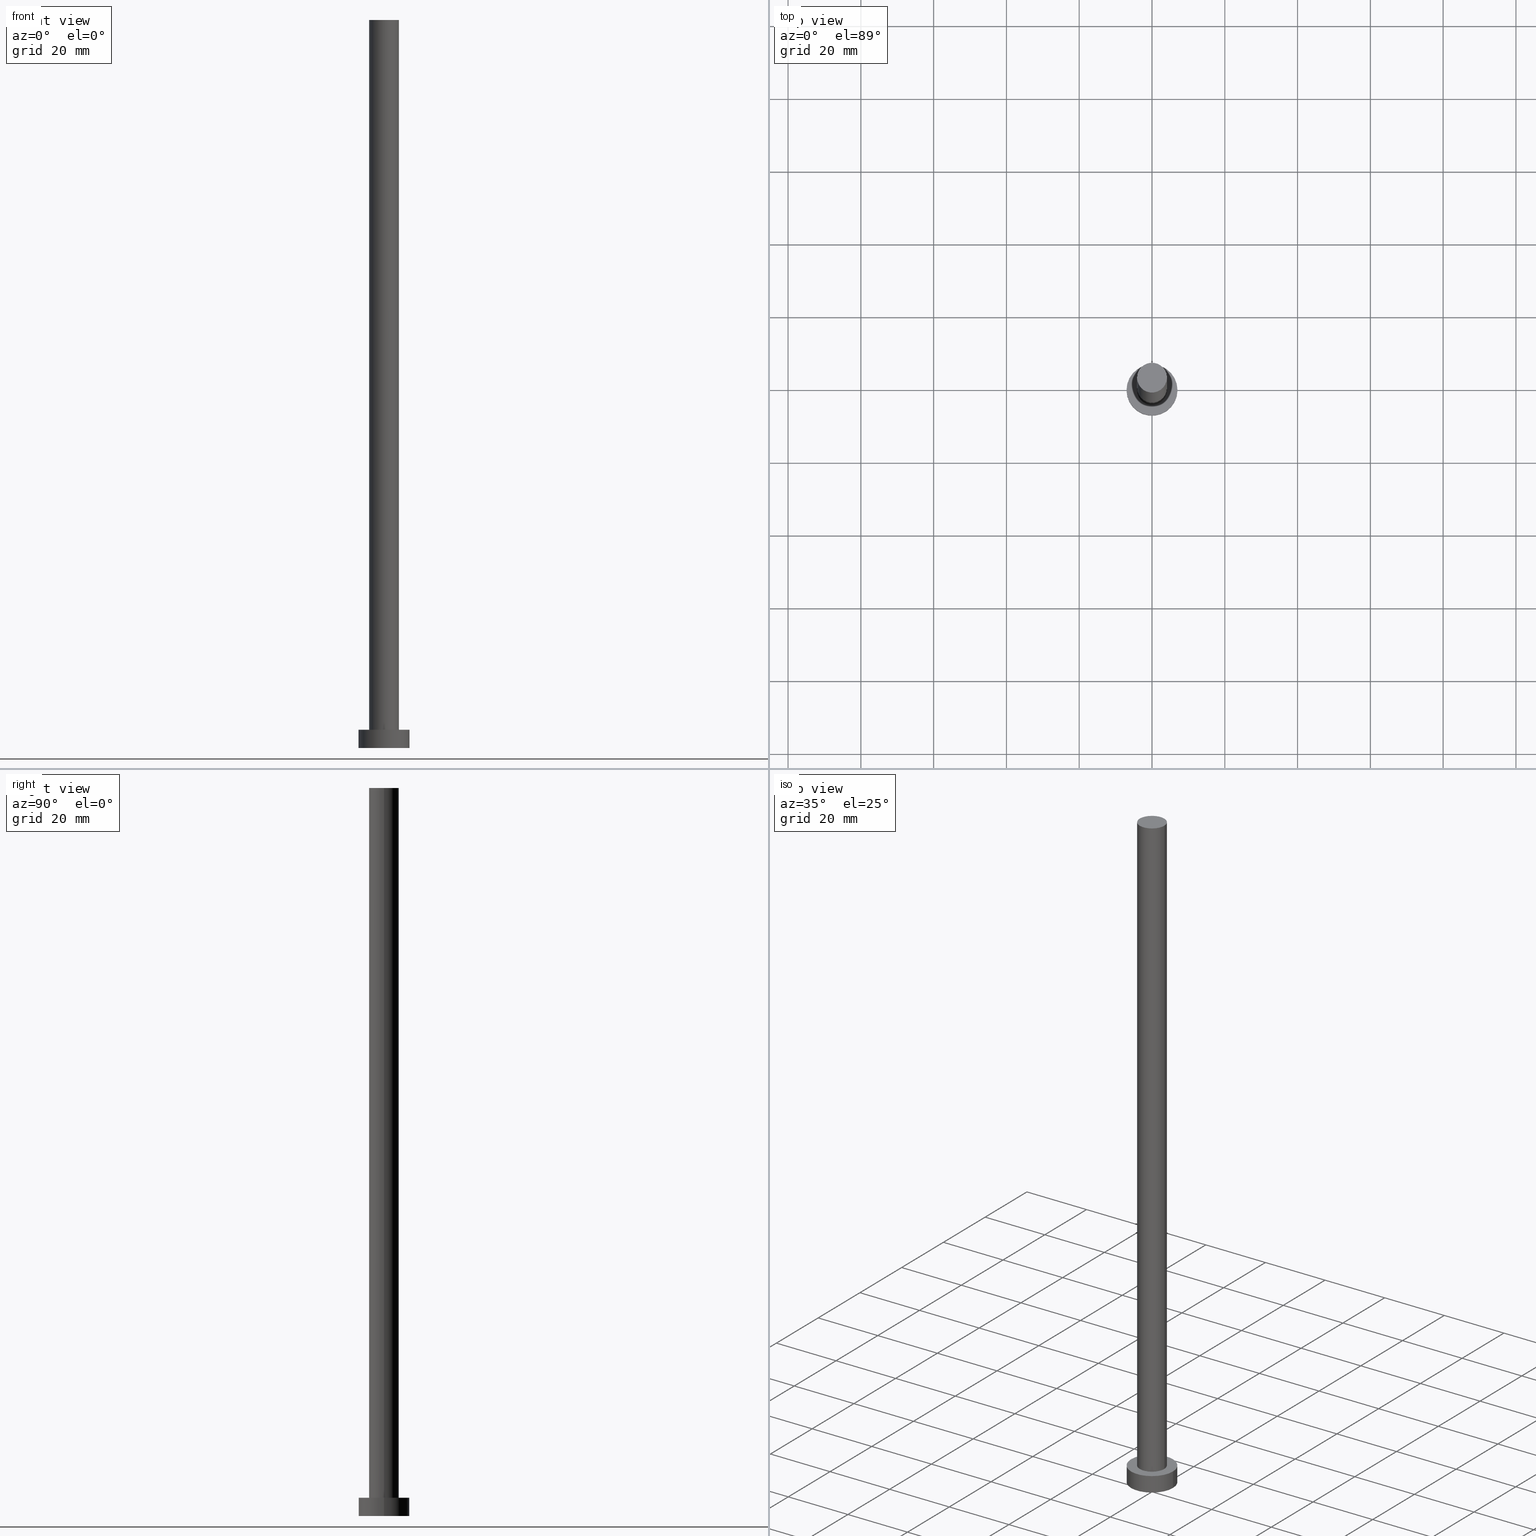
[diagram: canonical four-view strip — front | top / right | iso, engineering-drawing reading convention]
A machine part, canonical four-view strip (front | top / right | iso — engineering-drawing reading convention). The complete STEP part file that produces these views, byte-faithful:
ISO-10303-21;
HEADER;
FILE_DESCRIPTION (( 'STEP AP203' ),
    '1' );
FILE_NAME ('b5e3.STEP',
    '2023-02-13T10:52:40',
    ( '' ),
    ( '' ),
    'SwSTEP 2.0',
    'SolidWorks 2019',
    '' );
FILE_SCHEMA (( 'CONFIG_CONTROL_DESIGN' ));
ENDSEC;

DATA;
#1 = ORIENTED_EDGE ( 'NONE', *, *, #16, .F. ) ;
#2 = COORDINATED_UNIVERSAL_TIME_OFFSET ( 1, 0, .AHEAD. ) ;
#3 = DIRECTION ( 'NONE',  ( 0.000000000000000000, 0.000000000000000000, 1.000000000000000000 ) ) ;
#4 = DIRECTION ( 'NONE',  ( 0.000000000000000000, 0.000000000000000000, 1.000000000000000000 ) ) ;
#5 = DIRECTION ( 'NONE',  ( -1.000000000000000000, 0.000000000000000000, 0.000000000000000000 ) ) ;
#6 = APPROVAL ( #57, 'NEUR�EN�' ) ;
#7 = DIRECTION ( 'NONE',  ( -0.000000000000000000, -0.000000000000000000, -1.000000000000000000 ) ) ;
#8 = LINE ( 'NONE', #55, #58 ) ;
#9 = CARTESIAN_POINT ( 'NONE',  ( 7.000000000000000000, 8.572527594031473190E-16, 5.000000000000000000 ) ) ;
#10 = CIRCLE ( 'NONE', #29, 4.099999999999999645 ) ;
#11 = CC_DESIGN_PERSON_AND_ORGANIZATION_ASSIGNMENT ( #161, #49, ( #163 ) ) ;
#12 = APPROVAL ( #165, 'NEUR�EN�' ) ;
#13 = APPROVAL_STATUS ( 'not_yet_approved' ) ;
#14 = EDGE_CURVE ( 'NONE', #32, #193, #102, .T. ) ;
#15 = ORIENTED_EDGE ( 'NONE', *, *, #171, .T. ) ;
#16 = EDGE_CURVE ( 'NONE', #77, #250, #10, .T. ) ;
#17 = CYLINDRICAL_SURFACE ( 'NONE', #172, 4.099999999999999645 ) ;
#18 = APPLICATION_PROTOCOL_DEFINITION ( 'international standard', 'config_control_design', 1994, #233 ) ;
#19 = DIRECTION ( 'NONE',  ( 1.000000000000000000, 0.000000000000000000, 0.000000000000000000 ) ) ;
#20 = PERSON_AND_ORGANIZATION ( #178, #36 ) ;
#21 = DIRECTION ( 'NONE',  ( 0.000000000000000000, 0.000000000000000000, 1.000000000000000000 ) ) ;
#22 = DIRECTION ( 'NONE',  ( 1.000000000000000000, 0.000000000000000000, 0.000000000000000000 ) ) ;
#23 = DIRECTION ( 'NONE',  ( 1.000000000000000000, 0.000000000000000000, -0.000000000000000000 ) ) ;
#24 = DIRECTION ( 'NONE',  ( 1.000000000000000000, 0.000000000000000000, -0.000000000000000000 ) ) ;
#25 = APPROVAL_PERSON_ORGANIZATION ( #114, #6, #91 ) ;
#26 = CARTESIAN_POINT ( 'NONE',  ( 0.000000000000000000, 0.000000000000000000, 200.0000000000000000 ) ) ;
#27 = ORIENTED_EDGE ( 'NONE', *, *, #14, .F. ) ;
#28 =( LENGTH_UNIT ( ) NAMED_UNIT ( * ) SI_UNIT ( .MILLI., .METRE. ) );
#29 = AXIS2_PLACEMENT_3D ( 'NONE', #232, #240, #116 ) ;
#30 = ADVANCED_BREP_SHAPE_REPRESENTATION ( 'b5e3', ( #139, #255 ), #229 ) ;
#31 = PERSON_AND_ORGANIZATION ( #178, #36 ) ;
#32 = VERTEX_POINT ( 'NONE', #54 ) ;
#33 = PRODUCT_DEFINITION_FORMATION_WITH_SPECIFIED_SOURCE ( 'LIBOVOLN�', '', #173, .NOT_KNOWN. ) ;
#34 = ORIENTED_EDGE ( 'NONE', *, *, #78, .T. ) ;
#35 = EDGE_CURVE ( 'NONE', #170, #93, #204, .T. ) ;
#36 = ORGANIZATION ( 'NEUR�EN�', 'NEUR�EN�', '' ) ;
#37 = EDGE_CURVE ( 'NONE', #170, #211, #111, .T. ) ;
#38 = PERSON_AND_ORGANIZATION_ROLE ( 'design_owner' ) ;
#39 = CARTESIAN_POINT ( 'NONE',  ( 0.000000000000000000, 0.000000000000000000, 5.000000000000000000 ) ) ;
#40 = CC_DESIGN_DATE_AND_TIME_ASSIGNMENT ( #124, #224, ( #163 ) ) ;
#41 = LOCAL_TIME ( 11, 52, 40.00000000000000000, #67 ) ;
#42 = DATE_AND_TIME ( #72, #213 ) ;
#43 = CARTESIAN_POINT ( 'NONE',  ( 0.000000000000000000, 0.000000000000000000, 0.000000000000000000 ) ) ;
#44 = EDGE_LOOP ( 'NONE', ( #1, #251, #80, #127 ) ) ;
#45 = APPROVAL_DATE_TIME ( #151, #190 ) ;
#46 = DIRECTION ( 'NONE',  ( -1.000000000000000000, 0.000000000000000000, 0.000000000000000000 ) ) ;
#47 = AXIS2_PLACEMENT_3D ( 'NONE', #43, #236, #216 ) ;
#48 = DIRECTION ( 'NONE',  ( 1.000000000000000000, 0.000000000000000000, 0.000000000000000000 ) ) ;
#49 = PERSON_AND_ORGANIZATION_ROLE ( 'creator' ) ;
#50 = APPROVAL_DATE_TIME ( #223, #12 ) ;
#51 = DATE_TIME_ROLE ( 'classification_date' ) ;
#52 = ORIENTED_EDGE ( 'NONE', *, *, #150, .F. ) ;
#53 = APPLICATION_PROTOCOL_DEFINITION ( 'international standard', 'config_control_design', 1994, #244 ) ;
#54 = CARTESIAN_POINT ( 'NONE',  ( 4.099999999999999645, 5.021051876504147385E-16, 5.000000000000000000 ) ) ;
#55 = CARTESIAN_POINT ( 'NONE',  ( 7.000000000000000000, 8.572527594031473190E-16, 5.000000000000000000 ) ) ;
#56 = AXIS2_PLACEMENT_3D ( 'NONE', #98, #155, #22 ) ;
#57 = APPROVAL_STATUS ( 'not_yet_approved' ) ;
#58 = VECTOR ( 'NONE', #135, 1000.000000000000000 ) ;
#59 = PLANE ( 'NONE',  #205 ) ;
#60 = CARTESIAN_POINT ( 'NONE',  ( 0.000000000000000000, 0.000000000000000000, 5.000000000000000000 ) ) ;
#61 = FACE_OUTER_BOUND ( 'NONE', #253, .T. ) ;
#62 = CYLINDRICAL_SURFACE ( 'NONE', #130, 7.000000000000000000 ) ;
#63 = ORIENTED_EDGE ( 'NONE', *, *, #35, .T. ) ;
#64 = CALENDAR_DATE ( 2023, 13, 2 ) ;
#65 = PRODUCT_RELATED_PRODUCT_CATEGORY ( 'detail', '', ( #173 ) ) ;
#66 = PERSON_AND_ORGANIZATION_ROLE ( 'creator' ) ;
#67 = COORDINATED_UNIVERSAL_TIME_OFFSET ( 1, 0, .AHEAD. ) ;
#68 = SECURITY_CLASSIFICATION_LEVEL ( 'unclassified' ) ;
#69 = CC_DESIGN_SECURITY_CLASSIFICATION ( #113, ( #33 ) ) ;
#70 = CIRCLE ( 'NONE', #47, 7.000000000000000000 ) ;
#71 = CARTESIAN_POINT ( 'NONE',  ( 0.000000000000000000, 0.000000000000000000, 0.000000000000000000 ) ) ;
#72 = CALENDAR_DATE ( 2023, 13, 2 ) ;
#73 = CARTESIAN_POINT ( 'NONE',  ( -7.000000000000000000, 0.000000000000000000, 5.000000000000000000 ) ) ;
#74 = EDGE_CURVE ( 'NONE', #211, #209, #166, .T. ) ;
#75 = DIRECTION ( 'NONE',  ( -1.000000000000000000, 0.000000000000000000, 0.000000000000000000 ) ) ;
#76 = LINE ( 'NONE', #159, #104 ) ;
#77 = VERTEX_POINT ( 'NONE', #183 ) ;
#78 = EDGE_CURVE ( 'NONE', #93, #170, #241, .T. ) ;
#79 = CARTESIAN_POINT ( 'NONE',  ( -7.000000000000000000, 0.000000000000000000, 0.000000000000000000 ) ) ;
#80 = ORIENTED_EDGE ( 'NONE', *, *, #14, .T. ) ;
#81 = ORIENTED_EDGE ( 'NONE', *, *, #16, .T. ) ;
#82 = AXIS2_PLACEMENT_3D ( 'NONE', #26, #198, #23 ) ;
#83 = CALENDAR_DATE ( 2023, 13, 2 ) ;
#84 = ADVANCED_FACE ( 'NONE', ( #235 ), #94, .T. ) ;
#85 = EDGE_CURVE ( 'NONE', #209, #211, #70, .T. ) ;
#86 = ORIENTED_EDGE ( 'NONE', *, *, #74, .T. ) ;
#87 = ORIENTED_EDGE ( 'NONE', *, *, #37, .F. ) ;
#88 = PERSON_AND_ORGANIZATION_ROLE ( 'classification_officer' ) ;
#89 = VECTOR ( 'NONE', #131, 1000.000000000000000 ) ;
#90 = LINE ( 'NONE', #199, #237 ) ;
#91 = APPROVAL_ROLE ( '' ) ;
#92 = FACE_OUTER_BOUND ( 'NONE', #202, .T. ) ;
#93 = VERTEX_POINT ( 'NONE', #9 ) ;
#94 = CYLINDRICAL_SURFACE ( 'NONE', #187, 4.099999999999999645 ) ;
#95 = DIRECTION ( 'NONE',  ( 1.000000000000000000, 0.000000000000000000, 0.000000000000000000 ) ) ;
#96 = AXIS2_PLACEMENT_3D ( 'NONE', #120, #180, #175 ) ;
#97 = CARTESIAN_POINT ( 'NONE',  ( -4.099999999999999645, 0.000000000000000000, 200.0000000000000000 ) ) ;
#98 = CARTESIAN_POINT ( 'NONE',  ( 0.000000000000000000, 0.000000000000000000, 5.000000000000000000 ) ) ;
#99 = CARTESIAN_POINT ( 'NONE',  ( 0.000000000000000000, 0.000000000000000000, 5.000000000000000000 ) ) ;
#100 = ORIENTED_EDGE ( 'NONE', *, *, #85, .T. ) ;
#101 = PERSON_AND_ORGANIZATION ( #178, #36 ) ;
#102 = CIRCLE ( 'NONE', #133, 4.099999999999999645 ) ;
#103 = CIRCLE ( 'NONE', #164, 4.099999999999999645 ) ;
#104 = VECTOR ( 'NONE', #239, 1000.000000000000000 ) ;
#105 = CC_DESIGN_PERSON_AND_ORGANIZATION_ASSIGNMENT ( #206, #88, ( #113 ) ) ;
#106 = CIRCLE ( 'NONE', #148, 4.099999999999999645 ) ;
#107 = CARTESIAN_POINT ( 'NONE',  ( 0.000000000000000000, 0.000000000000000000, 0.000000000000000000 ) ) ;
#108 = FACE_OUTER_BOUND ( 'NONE', #188, .T. ) ;
#109 = CLOSED_SHELL ( 'NONE', ( #84, #215, #177, #212, #249, #222, #145 ) ) ;
#110 = FACE_OUTER_BOUND ( 'NONE', #117, .T. ) ;
#111 = LINE ( 'NONE', #122, #89 ) ;
#112 = CALENDAR_DATE ( 2023, 13, 2 ) ;
#113 = SECURITY_CLASSIFICATION ( '', '', #68 ) ;
#114 = PERSON_AND_ORGANIZATION ( #178, #36 ) ;
#115 = FACE_BOUND ( 'NONE', #125, .T. ) ;
#116 = DIRECTION ( 'NONE',  ( 1.000000000000000000, 0.000000000000000000, 0.000000000000000000 ) ) ;
#117 = EDGE_LOOP ( 'NONE', ( #168, #52, #226, #254 ) ) ;
#118 = APPROVAL_DATE_TIME ( #42, #6 ) ;
#119 = PLANE ( 'NONE',  #82 ) ;
#120 = CARTESIAN_POINT ( 'NONE',  ( 0.000000000000000000, 0.000000000000000000, 5.000000000000000000 ) ) ;
#121 = CARTESIAN_POINT ( 'NONE',  ( -4.099999999999999645, 0.000000000000000000, 5.000000000000000000 ) ) ;
#122 = CARTESIAN_POINT ( 'NONE',  ( -7.000000000000000000, 0.000000000000000000, 5.000000000000000000 ) ) ;
#123 = ORIENTED_EDGE ( 'NONE', *, *, #74, .F. ) ;
#124 = DATE_AND_TIME ( #83, #41 ) ;
#125 = EDGE_LOOP ( 'NONE', ( #129, #27 ) ) ;
#126 = AXIS2_PLACEMENT_3D ( 'NONE', #158, #162, #19 ) ;
#127 = ORIENTED_EDGE ( 'NONE', *, *, #174, .F. ) ;
#128 = CC_DESIGN_PERSON_AND_ORGANIZATION_ASSIGNMENT ( #20, #38, ( #173 ) ) ;
#129 = ORIENTED_EDGE ( 'NONE', *, *, #136, .F. ) ;
#130 = AXIS2_PLACEMENT_3D ( 'NONE', #142, #220, #46 ) ;
#131 = DIRECTION ( 'NONE',  ( -0.000000000000000000, -0.000000000000000000, -1.000000000000000000 ) ) ;
#132 = SHAPE_DEFINITION_REPRESENTATION ( #245, #30 ) ;
#133 = AXIS2_PLACEMENT_3D ( 'NONE', #99, #201, #219 ) ;
#134 = PLANE ( 'NONE',  #217 ) ;
#135 = DIRECTION ( 'NONE',  ( -0.000000000000000000, -0.000000000000000000, -1.000000000000000000 ) ) ;
#136 = EDGE_CURVE ( 'NONE', #193, #32, #103, .T. ) ;
#137 = DIRECTION ( 'NONE',  ( 1.000000000000000000, 0.000000000000000000, -0.000000000000000000 ) ) ;
#138 = DESIGN_CONTEXT ( 'detailed design', #233, 'design' ) ;
#139 = MANIFOLD_SOLID_BREP ( 'P�idat vysunut�m3', #109 ) ;
#140 = DIRECTION ( 'NONE',  ( 0.000000000000000000, 0.000000000000000000, 1.000000000000000000 ) ) ;
#141 = CYLINDRICAL_SURFACE ( 'NONE', #96, 7.000000000000000000 ) ;
#142 = CARTESIAN_POINT ( 'NONE',  ( 0.000000000000000000, 0.000000000000000000, 5.000000000000000000 ) ) ;
#143 = COORDINATED_UNIVERSAL_TIME_OFFSET ( 1, 0, .AHEAD. ) ;
#144 = FACE_OUTER_BOUND ( 'NONE', #252, .T. ) ;
#145 = ADVANCED_FACE ( 'NONE', ( #92 ), #119, .T. ) ;
#146 = CALENDAR_DATE ( 2023, 13, 2 ) ;
#147 = APPROVAL_ROLE ( '' ) ;
#148 = AXIS2_PLACEMENT_3D ( 'NONE', #176, #3, #95 ) ;
#149 = PERSON_AND_ORGANIZATION ( #178, #36 ) ;
#150 = EDGE_CURVE ( 'NONE', #250, #77, #106, .T. ) ;
#151 = DATE_AND_TIME ( #112, #242 ) ;
#152 =( NAMED_UNIT ( * ) SI_UNIT ( $, .STERADIAN. ) SOLID_ANGLE_UNIT ( ) );
#153 = EDGE_LOOP ( 'NONE', ( #123, #186 ) ) ;
#154 = DIRECTION ( 'NONE',  ( -0.000000000000000000, -0.000000000000000000, -1.000000000000000000 ) ) ;
#155 = DIRECTION ( 'NONE',  ( 0.000000000000000000, 0.000000000000000000, 1.000000000000000000 ) ) ;
#156 = CC_DESIGN_PERSON_AND_ORGANIZATION_ASSIGNMENT ( #149, #247, ( #33 ) ) ;
#157 = DIRECTION ( 'NONE',  ( 1.000000000000000000, 0.000000000000000000, 0.000000000000000000 ) ) ;
#158 = CARTESIAN_POINT ( 'NONE',  ( 0.000000000000000000, 0.000000000000000000, 5.000000000000000000 ) ) ;
#159 = CARTESIAN_POINT ( 'NONE',  ( -4.099999999999999645, 0.000000000000000000, 200.0000000000000000 ) ) ;
#160 = ORIENTED_EDGE ( 'NONE', *, *, #37, .T. ) ;
#161 = PERSON_AND_ORGANIZATION ( #178, #36 ) ;
#162 = DIRECTION ( 'NONE',  ( 0.000000000000000000, 0.000000000000000000, 1.000000000000000000 ) ) ;
#163 = PRODUCT_DEFINITION ( 'NEZN�M�', '', #33, #138 ) ;
#164 = AXIS2_PLACEMENT_3D ( 'NONE', #60, #140, #214 ) ;
#165 = APPROVAL_STATUS ( 'not_yet_approved' ) ;
#166 = CIRCLE ( 'NONE', #228, 7.000000000000000000 ) ;
#167 = CC_DESIGN_APPROVAL ( #6, ( #163 ) ) ;
#168 = ORIENTED_EDGE ( 'NONE', *, *, #238, .F. ) ;
#169 = ORIENTED_EDGE ( 'NONE', *, *, #78, .F. ) ;
#170 = VERTEX_POINT ( 'NONE', #73 ) ;
#171 = EDGE_CURVE ( 'NONE', #93, #209, #8, .T. ) ;
#172 = AXIS2_PLACEMENT_3D ( 'NONE', #197, #154, #75 ) ;
#173 = PRODUCT ( 'b5e3', 'b5e3', '', ( #218 ) ) ;
#174 = EDGE_CURVE ( 'NONE', #250, #193, #76, .T. ) ;
#175 = DIRECTION ( 'NONE',  ( -1.000000000000000000, 0.000000000000000000, 0.000000000000000000 ) ) ;
#176 = CARTESIAN_POINT ( 'NONE',  ( 0.000000000000000000, 0.000000000000000000, 200.0000000000000000 ) ) ;
#177 = ADVANCED_FACE ( 'NONE', ( #61 ), #62, .T. ) ;
#178 = PERSON ( 'NEUR�EN�', 'NEUR�EN�', 'NEUR�EN�', ('NEUR�EN�'), ('NEUR�EN�'), ('NEUR�EN�') ) ;
#179 = CARTESIAN_POINT ( 'NONE',  ( 0.000000000000000000, 0.000000000000000000, 200.0000000000000000 ) ) ;
#180 = DIRECTION ( 'NONE',  ( -0.000000000000000000, -0.000000000000000000, -1.000000000000000000 ) ) ;
#181 = DIRECTION ( 'NONE',  ( -0.000000000000000000, -0.000000000000000000, -1.000000000000000000 ) ) ;
#182 = CC_DESIGN_APPROVAL ( #190, ( #113 ) ) ;
#183 = CARTESIAN_POINT ( 'NONE',  ( 4.099999999999999645, 5.021051876504147385E-16, 200.0000000000000000 ) ) ;
#184 =( NAMED_UNIT ( * ) PLANE_ANGLE_UNIT ( ) SI_UNIT ( $, .RADIAN. ) );
#185 = LOCAL_TIME ( 11, 52, 40.00000000000000000, #143 ) ;
#186 = ORIENTED_EDGE ( 'NONE', *, *, #85, .F. ) ;
#187 = AXIS2_PLACEMENT_3D ( 'NONE', #179, #181, #5 ) ;
#188 = EDGE_LOOP ( 'NONE', ( #169, #15, #100, #87 ) ) ;
#189 = COORDINATED_UNIVERSAL_TIME_OFFSET ( 1, 0, .AHEAD. ) ;
#190 = APPROVAL ( #13, 'NEUR�EN�' ) ;
#191 = ORIENTED_EDGE ( 'NONE', *, *, #35, .F. ) ;
#192 = LOCAL_TIME ( 11, 52, 40.00000000000000000, #189 ) ;
#193 = VERTEX_POINT ( 'NONE', #121 ) ;
#194 = CARTESIAN_POINT ( 'NONE',  ( 0.000000000000000000, 0.000000000000000000, 0.000000000000000000 ) ) ;
#195 = ORIENTED_EDGE ( 'NONE', *, *, #171, .F. ) ;
#196 = CC_DESIGN_APPROVAL ( #12, ( #33 ) ) ;
#197 = CARTESIAN_POINT ( 'NONE',  ( 0.000000000000000000, 0.000000000000000000, 200.0000000000000000 ) ) ;
#198 = DIRECTION ( 'NONE',  ( 0.000000000000000000, 0.000000000000000000, 1.000000000000000000 ) ) ;
#199 = CARTESIAN_POINT ( 'NONE',  ( 4.099999999999999645, 5.021051876504147385E-16, 200.0000000000000000 ) ) ;
#200 = CARTESIAN_POINT ( 'NONE',  ( 7.000000000000000000, 8.572527594031473190E-16, 0.000000000000000000 ) ) ;
#201 = DIRECTION ( 'NONE',  ( 0.000000000000000000, 0.000000000000000000, 1.000000000000000000 ) ) ;
#202 = EDGE_LOOP ( 'NONE', ( #227, #81 ) ) ;
#203 = CC_DESIGN_PERSON_AND_ORGANIZATION_ASSIGNMENT ( #31, #66, ( #33 ) ) ;
#204 = CIRCLE ( 'NONE', #56, 7.000000000000000000 ) ;
#205 = AXIS2_PLACEMENT_3D ( 'NONE', #39, #4, #137 ) ;
#206 = PERSON_AND_ORGANIZATION ( #178, #36 ) ;
#207 = PERSON_AND_ORGANIZATION ( #178, #36 ) ;
#208 = APPROVAL_PERSON_ORGANIZATION ( #101, #12, #243 ) ;
#209 = VERTEX_POINT ( 'NONE', #200 ) ;
#210 = COORDINATED_UNIVERSAL_TIME_OFFSET ( 1, 0, .AHEAD. ) ;
#211 = VERTEX_POINT ( 'NONE', #79 ) ;
#212 = ADVANCED_FACE ( 'NONE', ( #115, #144 ), #59, .T. ) ;
#213 = LOCAL_TIME ( 11, 52, 40.00000000000000000, #2 ) ;
#214 = DIRECTION ( 'NONE',  ( 1.000000000000000000, 0.000000000000000000, 0.000000000000000000 ) ) ;
#215 = ADVANCED_FACE ( 'NONE', ( #108 ), #141, .T. ) ;
#216 = DIRECTION ( 'NONE',  ( 1.000000000000000000, 0.000000000000000000, 0.000000000000000000 ) ) ;
#217 = AXIS2_PLACEMENT_3D ( 'NONE', #71, #21, #24 ) ;
#218 = MECHANICAL_CONTEXT ( 'NONE', #244, 'mechanical' ) ;
#219 = DIRECTION ( 'NONE',  ( 1.000000000000000000, 0.000000000000000000, 0.000000000000000000 ) ) ;
#220 = DIRECTION ( 'NONE',  ( -0.000000000000000000, -0.000000000000000000, -1.000000000000000000 ) ) ;
#221 = DIRECTION ( 'NONE',  ( 0.000000000000000000, 0.000000000000000000, 1.000000000000000000 ) ) ;
#222 = ADVANCED_FACE ( 'NONE', ( #110 ), #17, .T. ) ;
#223 = DATE_AND_TIME ( #64, #185 ) ;
#224 = DATE_TIME_ROLE ( 'creation_date' ) ;
#225 = DATE_AND_TIME ( #146, #192 ) ;
#226 = ORIENTED_EDGE ( 'NONE', *, *, #174, .T. ) ;
#227 = ORIENTED_EDGE ( 'NONE', *, *, #150, .T. ) ;
#228 = AXIS2_PLACEMENT_3D ( 'NONE', #194, #221, #48 ) ;
#229 =( GEOMETRIC_REPRESENTATION_CONTEXT ( 3 ) GLOBAL_UNCERTAINTY_ASSIGNED_CONTEXT ( ( #231 ) ) GLOBAL_UNIT_ASSIGNED_CONTEXT ( ( #28, #184, #152 ) ) REPRESENTATION_CONTEXT ( 'NONE', 'WORKASPACE' ) );
#230 = DIRECTION ( 'NONE',  ( 0.000000000000000000, 0.000000000000000000, 1.000000000000000000 ) ) ;
#231 = UNCERTAINTY_MEASURE_WITH_UNIT (LENGTH_MEASURE( 1.000000000000000082E-05 ), #28, 'distance_accuracy_value', 'NONE');
#232 = CARTESIAN_POINT ( 'NONE',  ( 0.000000000000000000, 0.000000000000000000, 200.0000000000000000 ) ) ;
#233 = APPLICATION_CONTEXT ( 'configuration controlled 3d designs of mechanical parts and assemblies' ) ;
#234 = FACE_OUTER_BOUND ( 'NONE', #153, .T. ) ;
#235 = FACE_OUTER_BOUND ( 'NONE', #44, .T. ) ;
#236 = DIRECTION ( 'NONE',  ( 0.000000000000000000, 0.000000000000000000, 1.000000000000000000 ) ) ;
#237 = VECTOR ( 'NONE', #7, 1000.000000000000000 ) ;
#238 = EDGE_CURVE ( 'NONE', #77, #32, #90, .T. ) ;
#239 = DIRECTION ( 'NONE',  ( -0.000000000000000000, -0.000000000000000000, -1.000000000000000000 ) ) ;
#240 = DIRECTION ( 'NONE',  ( 0.000000000000000000, 0.000000000000000000, 1.000000000000000000 ) ) ;
#241 = CIRCLE ( 'NONE', #126, 7.000000000000000000 ) ;
#242 = LOCAL_TIME ( 11, 52, 40.00000000000000000, #210 ) ;
#243 = APPROVAL_ROLE ( '' ) ;
#244 = APPLICATION_CONTEXT ( 'configuration controlled 3d designs of mechanical parts and assemblies' ) ;
#245 = PRODUCT_DEFINITION_SHAPE ( 'NONE', 'NONE',  #163 ) ;
#246 = APPROVAL_PERSON_ORGANIZATION ( #207, #190, #147 ) ;
#247 = PERSON_AND_ORGANIZATION_ROLE ( 'design_supplier' ) ;
#248 = CC_DESIGN_DATE_AND_TIME_ASSIGNMENT ( #225, #51, ( #113 ) ) ;
#249 = ADVANCED_FACE ( 'NONE', ( #234 ), #134, .F. ) ;
#250 = VERTEX_POINT ( 'NONE', #97 ) ;
#251 = ORIENTED_EDGE ( 'NONE', *, *, #238, .T. ) ;
#252 = EDGE_LOOP ( 'NONE', ( #63, #34 ) ) ;
#253 = EDGE_LOOP ( 'NONE', ( #195, #191, #160, #86 ) ) ;
#254 = ORIENTED_EDGE ( 'NONE', *, *, #136, .T. ) ;
#255 = AXIS2_PLACEMENT_3D ( 'NONE', #107, #230, #157 ) ;
ENDSEC;
END-ISO-10303-21;
